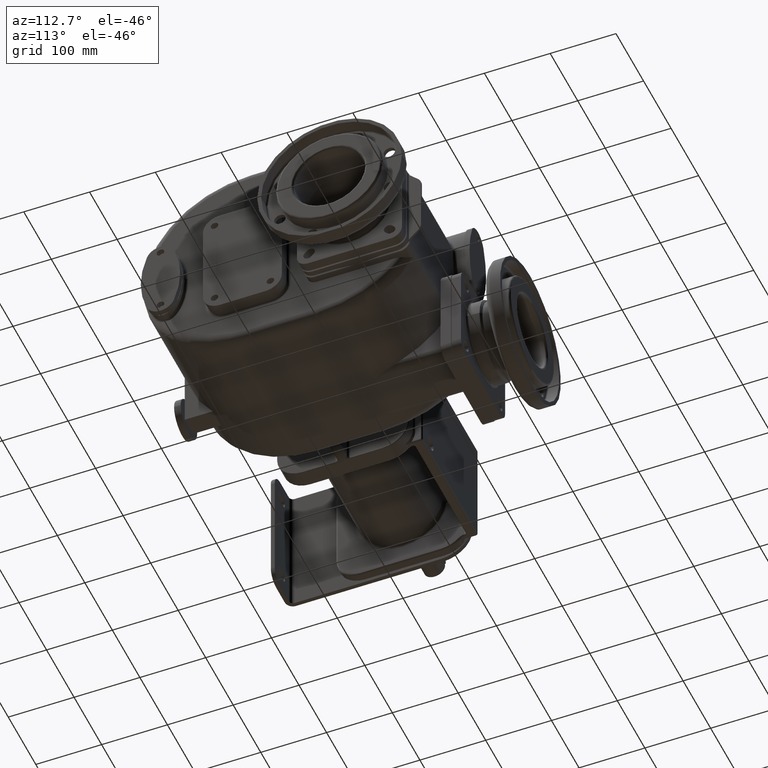
[diagram: clean part render]
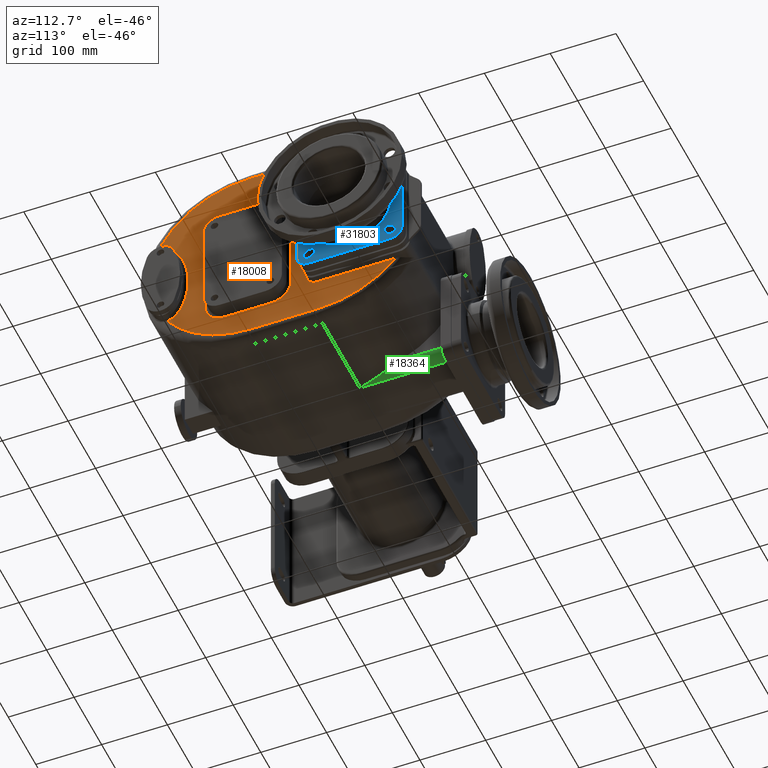
[diagram: same view with three faces highlighted in distinct colors, each labeled with its STEP entity id]
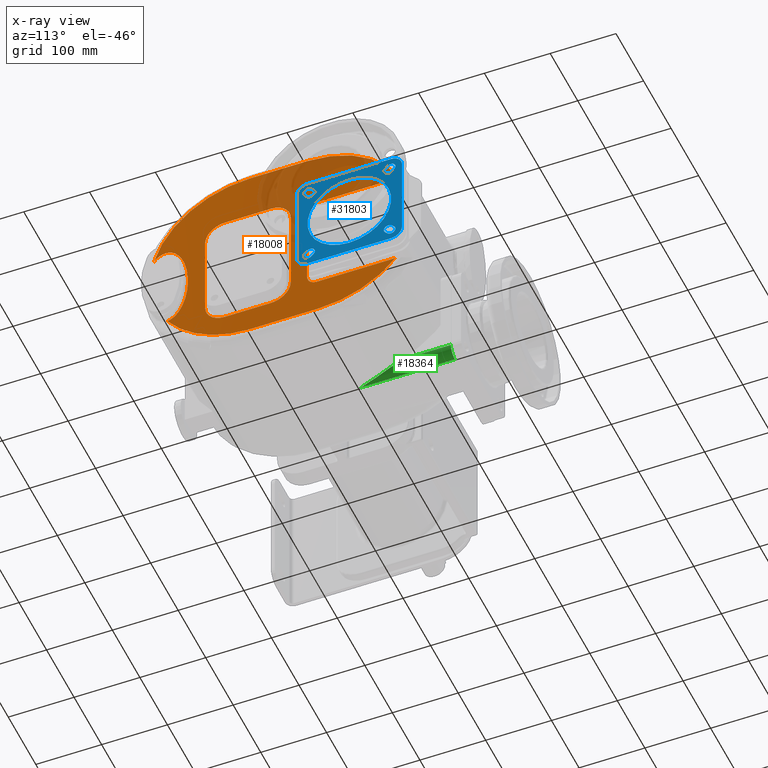
[diagram: x-ray of the same camera — body ghosted, the three highlighted faces saturated]
A machine part, auxiliary view with three faces highlighted in distinct colors.
The next image is the same camera in x-ray (body ghosted, the three faces saturated) — at least one of them is partly hidden behind the body in this view.
Their STEP definitions:

[orange] entity #18008 — the highlighted planar face has unit normal (-1, 0, 0).
#3175=DIRECTION('',(0.E0,1.E0,0.E0));
#3176=VECTOR('',#3175,1.190412641704E2);
#3177=CARTESIAN_POINT('',(1.8E2,2.7E2,-9.7E1));
#3178=LINE('',#3177,#3176);
#3329=DIRECTION('',(0.E0,0.E0,-1.E0));
#3330=VECTOR('',#3329,1.3E2);
#3331=CARTESIAN_POINT('',(1.8E2,2.55E2,4.8E1));
#3332=LINE('',#3331,#3330);
#3337=CARTESIAN_POINT('',(1.8E2,2.7E2,-8.2E1));
#3338=DIRECTION('',(-1.E0,0.E0,0.E0));
#3339=DIRECTION('',(0.E0,0.E0,-1.E0));
#3340=AXIS2_PLACEMENT_3D('',#3337,#3338,#3339);
#3342=CARTESIAN_POINT('',(1.8E2,4.E1,5.2E1));
#3343=CARTESIAN_POINT('',(1.800000331843E2,3.980818727470E1,5.199993962877E1));
#3344=CARTESIAN_POINT('',(1.799999845991E2,3.942480011682E1,5.199338808963E1));
#3345=CARTESIAN_POINT('',(1.800000041267E2,3.885060286425E1,5.196556070980E1));
#3346=CARTESIAN_POINT('',(1.799999988943E2,3.827678143422E1,5.191930522433E1));
#3347=CARTESIAN_POINT('',(1.800000002963E2,3.770302246160E1,5.185469433463E1));
#3348=CARTESIAN_POINT('',(1.799999999206E2,3.712898830050E1,5.177150025391E1));
#3349=CARTESIAN_POINT('',(1.800000000213E2,3.655439441187E1,5.166937378275E1));
#3350=CARTESIAN_POINT('',(1.799999999943E2,3.597899179671E1,5.154793146049E1));
#3351=CARTESIAN_POINT('',(1.800000000015E2,3.540211462222E1,5.140694735420E1));
#3352=CARTESIAN_POINT('',(1.799999999996E2,3.482310120080E1,5.124599283637E1));
#3353=CARTESIAN_POINT('',(1.800000000001E2,3.424129892006E1,5.106449656628E1));
#3354=CARTESIAN_POINT('',(1.8E2,3.365657686726E1,5.086189949844E1));
#3355=CARTESIAN_POINT('',(1.8E2,3.306934016899E1,5.063776117252E1));
#3356=CARTESIAN_POINT('',(1.8E2,3.248013854139E1,5.039163121960E1));
#3357=CARTESIAN_POINT('',(1.8E2,3.188885548453E1,5.012287420619E1));
#3358=CARTESIAN_POINT('',(1.8E2,3.129418848023E1,4.983033170392E1));
#3359=CARTESIAN_POINT('',(1.8E2,3.069517736382E1,4.951274395990E1));
#3360=CARTESIAN_POINT('',(1.8E2,3.009115941096E1,4.916881165846E1));
#3361=CARTESIAN_POINT('',(1.8E2,2.948285387504E1,4.879791862295E1));
#3362=CARTESIAN_POINT('',(1.8E2,2.887098042497E1,4.839948413577E1));
#3363=CARTESIAN_POINT('',(1.799999999999E2,2.825614514426E1,4.797287386555E1));
#3364=CARTESIAN_POINT('',(1.800000000004E2,2.763733871677E1,4.751622717343E1));
#3365=CARTESIAN_POINT('',(1.799999999985E2,2.701384605031E1,4.702767004294E1));
#3366=CARTESIAN_POINT('',(1.800000000057E2,2.638513806620E1,4.650529396619E1));
#3367=CARTESIAN_POINT('',(1.799999999788E2,2.575114861445E1,4.594744386966E1));
#3368=CARTESIAN_POINT('',(1.800000000791E2,2.511191621515E1,4.535246821145E1));
#3369=CARTESIAN_POINT('',(1.799999997050E2,2.446761445800E1,4.471885710891E1));
#3370=CARTESIAN_POINT('',(1.800000011011E2,2.381855094523E1,4.404481922097E1));
#3371=CARTESIAN_POINT('',(1.799999958908E2,2.316516593720E1,4.332840735070E1));
#3372=CARTESIAN_POINT('',(1.800000153359E2,2.250795785787E1,4.256798845231E1));
#3373=CARTESIAN_POINT('',(1.799999669558E2,2.206775618607E1,4.203031686421E1));
#3374=CARTESIAN_POINT('',(1.8E2,2.184726104059E1,4.175378615796E1));
#3376=CARTESIAN_POINT('',(1.8E2,1.68E2,0.E0));
#3377=DIRECTION('',(1.E0,0.E0,0.E0));
#3378=DIRECTION('',(0.E0,0.E0,1.E0));
#3379=AXIS2_PLACEMENT_3D('',#3376,#3377,#3378);
#3381=DIRECTION('',(0.E0,-1.E0,0.E0));
#3382=VECTOR('',#3381,8.777794898144E1);
#3383=CARTESIAN_POINT('',(1.8E2,2.557779489814E2,1.52E2));
#3384=LINE('',#3383,#3382);
#3385=CARTESIAN_POINT('',(1.8E2,2.557779489814E2,0.E0));
#3386=DIRECTION('',(1.E0,0.E0,0.E0));
#3387=DIRECTION('',(0.E0,9.100612974393E-1,4.144736842105E-1));
#3388=AXIS2_PLACEMENT_3D('',#3385,#3386,#3387);
#3390=CARTESIAN_POINT('',(1.8E2,2.720156259538E2,0.E0));
#3391=DIRECTION('',(1.E0,0.E0,0.E0));
#3392=DIRECTION('',(0.E0,0.E0,-1.E0));
#3393=AXIS2_PLACEMENT_3D('',#3390,#3391,#3392);
#3395=DIRECTION('',(0.E0,1.E0,0.E0));
#3396=VECTOR('',#3395,1.040156259538E2);
#3397=CARTESIAN_POINT('',(1.8E2,1.68E2,-1.52E2));
#3398=LINE('',#3397,#3396);
#3399=CARTESIAN_POINT('',(1.8E2,1.68E2,0.E0));
#3400=DIRECTION('',(1.E0,0.E0,0.E0));
#3401=DIRECTION('',(0.E0,-8.253686109153E-1,-5.645942402432E-1));
#3402=AXIS2_PLACEMENT_3D('',#3399,#3400,#3401);
#3404=CARTESIAN_POINT('',(1.8E2,4.254398519367E1,-8.581831490414E1));
#3405=CARTESIAN_POINT('',(1.799999576203E2,4.273448418722E1,-8.579113064837E1));
#3406=CARTESIAN_POINT('',(1.800000196685E2,4.311699007125E1,-8.572925093507E1));
#3407=CARTESIAN_POINT('',(1.799999947299E2,4.369615198677E1,-8.561888224030E1));
#3408=CARTESIAN_POINT('',(1.800000014121E2,4.427970648542E1,-8.548735146176E1));
#3409=CARTESIAN_POINT('',(1.799999996216E2,4.486738631977E1,-8.533483151979E1));
#3410=CARTESIAN_POINT('',(1.800000001014E2,4.545885354538E1,-8.516078490005E1));
#3411=CARTESIAN_POINT('',(1.799999999728E2,4.605372620474E1,-8.496488077846E1));
#3412=CARTESIAN_POINT('',(1.800000000073E2,4.665158160168E1,-8.474673163172E1));
#3413=CARTESIAN_POINT('',(1.799999999980E2,4.725185974461E1,-8.450600414516E1));
#3414=CARTESIAN_POINT('',(1.800000000005E2,4.785423712021E1,-8.424225516436E1));
#3415=CARTESIAN_POINT('',(1.799999999999E2,4.845923863383E1,-8.395456728404E1));
#3416=CARTESIAN_POINT('',(1.8E2,4.906710783786E1,-8.364194897871E1));
#3417=CARTESIAN_POINT('',(1.8E2,4.967823851880E1,-8.330341323749E1));
#3418=CARTESIAN_POINT('',(1.8E2,5.029334893937E1,-8.293767333756E1));
#3419=CARTESIAN_POINT('',(1.8E2,5.091309150415E1,-8.254330259045E1));
#3420=CARTESIAN_POINT('',(1.8E2,5.153797803444E1,-8.211879048320E1));
#3421=CARTESIAN_POINT('',(1.8E2,5.216804858170E1,-8.166279572738E1));
#3422=CARTESIAN_POINT('',(1.8E2,5.280296055975E1,-8.117419111672E1));
#3423=CARTESIAN_POINT('',(1.8E2,5.344240318969E1,-8.065167860861E1));
#3424=CARTESIAN_POINT('',(1.8E2,5.408652607022E1,-8.009349672348E1));
#3425=CARTESIAN_POINT('',(1.8E2,5.473530935171E1,-7.949794698872E1));
#3426=CARTESIAN_POINT('',(1.8E2,5.538888345341E1,-7.886313309123E1));
#3427=CARTESIAN_POINT('',(1.8E2,5.604755017724E1,-7.818685066555E1));
#3428=CARTESIAN_POINT('',(1.8E2,5.671132554390E1,-7.746666224846E1));
#3429=CARTESIAN_POINT('',(1.8E2,5.738004343081E1,-7.670023828095E1));
#3430=CARTESIAN_POINT('',(1.8E2,5.805355938730E1,-7.588524737336E1));
#3431=CARTESIAN_POINT('',(1.8E2,5.873159250727E1,-7.501911066679E1));
#3432=CARTESIAN_POINT('',(1.8E2,5.941359005206E1,-7.409922387014E1));
#3433=CARTESIAN_POINT('',(1.8E2,6.009909319418E1,-7.312303016413E1));
#3434=CARTESIAN_POINT('',(1.8E2,6.078759814060E1,-7.208764690390E1));
#3435=CARTESIAN_POINT('',(1.8E2,6.147824894362E1,-7.099013354473E1));
#3436=CARTESIAN_POINT('',(1.8E2,6.217025318667E1,-6.982776357650E1));
#3437=CARTESIAN_POINT('',(1.8E2,6.286255079838E1,-6.859761338820E1));
#3438=CARTESIAN_POINT('',(1.8E2,6.355387669675E1,-6.729682593738E1));
#3439=CARTESIAN_POINT('',(1.8E2,6.424290379719E1,-6.592285408985E1));
#3440=CARTESIAN_POINT('',(1.8E2,6.492793930763E1,-6.447298352913E1));
#3441=CARTESIAN_POINT('',(1.8E2,6.560727463214E1,-6.294503448074E1));
#3442=CARTESIAN_POINT('',(1.8E2,6.627883783383E1,-6.133678061513E1));
#3443=CARTESIAN_POINT('',(1.8E2,6.694051221516E1,-5.964658317709E1));
#3444=CARTESIAN_POINT('',(1.8E2,6.758984825433E1,-5.787294821885E1));
#3445=CARTESIAN_POINT('',(1.8E2,6.822437115398E1,-5.601502107566E1));
#3446=CARTESIAN_POINT('',(1.8E2,6.884133430897E1,-5.407212417479E1));
#3447=CARTESIAN_POINT('',(1.8E2,6.943794937927E1,-5.204444380553E1));
#3448=CARTESIAN_POINT('',(1.8E2,7.001123717127E1,-4.993241191694E1));
#3449=CARTESIAN_POINT('',(1.8E2,7.055812912224E1,-4.773761377466E1));
#3450=CARTESIAN_POINT('',(1.8E2,7.107550256937E1,-4.546208045615E1));
#3451=CARTESIAN_POINT('',(1.8E2,7.156017331873E1,-4.310889244837E1));
#3452=CARTESIAN_POINT('',(1.8E2,7.200906703540E1,-4.068185730257E1));
#3453=CARTESIAN_POINT('',(1.8E2,7.241910931263E1,-3.818550911297E1));
#3454=CARTESIAN_POINT('',(1.8E2,7.278746286882E1,-3.562544815721E1));
#3455=CARTESIAN_POINT('',(1.8E2,7.311137680005E1,-3.300769179452E1));
#3456=CARTESIAN_POINT('',(1.8E2,7.338847053111E1,-3.033940476639E1));
#3457=CARTESIAN_POINT('',(1.8E2,7.361651292697E1,-2.762790840168E1));
#3458=CARTESIAN_POINT('',(1.8E2,7.379378645438E1,-2.488161404186E1));
#3459=CARTESIAN_POINT('',(1.8E2,7.391873178365E1,-2.210904014249E1));
#3460=CARTESIAN_POINT('',(1.8E2,7.399044926425E1,-1.931934735244E1));
#3461=CARTESIAN_POINT('',(1.8E2,7.400821246141E1,-1.652191789015E1));
#3462=CARTESIAN_POINT('',(1.8E2,7.397198860098E1,-1.372614380797E1));
#3463=CARTESIAN_POINT('',(1.8E2,7.388200791742E1,-1.094151315767E1));
#3464=CARTESIAN_POINT('',(1.8E2,7.373905784398E1,-8.177305656894E0));
#3465=CARTESIAN_POINT('',(1.8E2,7.354432562118E1,-5.442295640126E0));
#3466=CARTESIAN_POINT('',(1.8E2,7.329934186452E1,-2.745244687352E0));
#3467=CARTESIAN_POINT('',(1.8E2,7.300610468834E1,-9.374905923024E-2));
#3468=CARTESIAN_POINT('',(1.8E2,7.266678991403E1,2.504551197165E0));
#3469=CARTESIAN_POINT('',(1.8E2,7.228399345032E1,5.043287509576E0));
#3470=CARTESIAN_POINT('',(1.8E2,7.186042542974E1,7.516239706656E0));
#3471=CARTESIAN_POINT('',(1.8E2,7.139905071802E1,9.918471680708E0));
#3472=CARTESIAN_POINT('',(1.8E2,7.090293042187E1,1.224541237753E1));
#3473=CARTESIAN_POINT('',(1.8E2,7.037518276257E1,1.449364794223E1));
#3474=CARTESIAN_POINT('',(1.8E2,6.981900223816E1,1.666037511705E1));
#3475=CARTESIAN_POINT('',(1.8E2,6.923747313531E1,1.874362040892E1));
#3476=CARTESIAN_POINT('',(1.8E2,6.863370028937E1,2.074231970080E1));
#3477=CARTESIAN_POINT('',(1.8E2,6.801053312788E1,2.265595108472E1));
#3478=CARTESIAN_POINT('',(1.8E2,6.737083040389E1,2.448485115161E1));
#3479=CARTESIAN_POINT('',(1.8E2,6.671713726574E1,2.622961258104E1));
#3480=CARTESIAN_POINT('',(1.8E2,6.605200962771E1,2.789153965201E1));
#3481=CARTESIAN_POINT('',(1.8E2,6.537765883438E1,2.947203370804E1));
#3482=CARTESIAN_POINT('',(1.8E2,6.469629336768E1,3.097311764243E1));
#3483=CARTESIAN_POINT('',(1.8E2,6.400972319486E1,3.239686677620E1));
#3484=CARTESIAN_POINT('',(1.8E2,6.331979487557E1,3.374574153604E1));
#3485=CARTESIAN_POINT('',(1.8E2,6.262798417715E1,3.502223350108E1));
#3486=CARTESIAN_POINT('',(1.8E2,6.193570484668E1,3.622902205492E1));
#3487=CARTESIAN_POINT('',(1.8E2,6.124417041571E1,3.736897600279E1));
#3488=CARTESIAN_POINT('',(1.8E2,6.055426456618E1,3.844484470499E1));
#3489=CARTESIAN_POINT('',(1.8E2,5.986692697393E1,3.945962802224E1));
#3490=CARTESIAN_POINT('',(1.8E2,5.918279132487E1,4.041617193559E1));
#3491=CARTESIAN_POINT('',(1.8E2,5.850222265604E1,4.131732763257E1));
#3492=CARTESIAN_POINT('',(1.8E2,5.782577590521E1,4.216583631149E1));
#3493=CARTESIAN_POINT('',(1.8E2,5.715382651690E1,4.296423204210E1));
#3494=CARTESIAN_POINT('',(1.8E2,5.648646724367E1,4.371503334128E1));
#3495=CARTESIAN_POINT('',(1.8E2,5.582395852801E1,4.442062128787E1));
#3496=CARTESIAN_POINT('',(1.8E2,5.516649480411E1,4.508317632765E1));
#3497=CARTESIAN_POINT('',(1.8E2,5.451402071744E1,4.570483566551E1));
#3498=CARTESIAN_POINT('',(1.8E2,5.386657747790E1,4.628762549572E1));
#3499=CARTESIAN_POINT('',(1.8E2,5.322418392843E1,4.683340020471E1));
#3500=CARTESIAN_POINT('',(1.8E2,5.258665287307E1,4.734396916503E1));
#3501=CARTESIAN_POINT('',(1.8E2,5.195389118481E1,4.782098865577E1));
#3502=CARTESIAN_POINT('',(1.8E2,5.132582205910E1,4.826597028932E1));
#3503=CARTESIAN_POINT('',(1.8E2,5.070220400795E1,4.868038938240E1));
#3504=CARTESIAN_POINT('',(1.8E2,5.008290132412E1,4.906553867028E1));
#3505=CARTESIAN_POINT('',(1.8E2,4.946779916625E1,4.942261879757E1));
#3506=CARTESIAN_POINT('',(1.8E2,4.885667068490E1,4.975278988079E1));
#3507=CARTESIAN_POINT('',(1.8E2,4.824923015791E1,5.005711219399E1));
#3508=CARTESIAN_POINT('',(1.8E2,4.764516114473E1,5.033660881168E1));
#3509=CARTESIAN_POINT('',(1.8E2,4.704409639167E1,5.059219609169E1));
#3510=CARTESIAN_POINT('',(1.8E2,4.644599054948E1,5.082452876819E1));
#3511=CARTESIAN_POINT('',(1.8E2,4.585080263081E1,5.103430381059E1));
#3512=CARTESIAN_POINT('',(1.8E2,4.525838813260E1,5.122216319776E1));
#3513=CARTESIAN_POINT('',(1.800000000001E2,4.466813237689E1,5.138874161680E1));
#3514=CARTESIAN_POINT('',(1.799999999997E2,4.407948632314E1,5.153465075716E1));
#3515=CARTESIAN_POINT('',(1.800000000010E2,4.349171051878E1,5.166042365702E1));
#3516=CARTESIAN_POINT('',(1.799999999961E2,4.290495319596E1,5.176622014298E1));
#3517=CARTESIAN_POINT('',(1.800000000145E2,4.231962804206E1,5.185219749989E1));
#3518=CARTESIAN_POINT('',(1.799999999460E2,4.173609435400E1,5.191864558629E1));
#3519=CARTESIAN_POINT('',(1.800000002016E2,4.115469489085E1,5.196579453957E1));
#3520=CARTESIAN_POINT('',(1.799999992475E2,4.057569381646E1,5.199379531186E1));
#3521=CARTESIAN_POINT('',(1.800000016214E2,4.019159750974E1,5.199999723067E1));
#3522=CARTESIAN_POINT('',(1.8E2,4.E1,5.2E1));
#3524=DIRECTION('',(0.E0,3.868850539123E-12,1.E0));
#3525=VECTOR('',#3524,1.299999999986E2);
#3526=CARTESIAN_POINT('',(1.8E2,2.299999999991E2,-8.199999999912E1));
#3527=LINE('',#3526,#3525);
#3528=CARTESIAN_POINT('',(1.8E2,2.E2,4.8E1));
#3529=DIRECTION('',(1.E0,0.E0,0.E0));
#3530=DIRECTION('',(0.E0,1.E0,0.E0));
#3531=AXIS2_PLACEMENT_3D('',#3528,#3529,#3530);
#3533=DIRECTION('',(0.E0,-1.E0,7.185820192995E-12));
#3534=VECTOR('',#3533,6.999999999856E1);
#3535=CARTESIAN_POINT('',(1.8E2,1.999999999991E2,7.799999999915E1));
#3536=LINE('',#3535,#3534);
#3537=CARTESIAN_POINT('',(1.8E2,1.3E2,4.8E1));
#3538=DIRECTION('',(1.E0,0.E0,0.E0));
#3539=DIRECTION('',(0.E0,0.E0,1.E0));
#3540=AXIS2_PLACEMENT_3D('',#3537,#3538,#3539);
#3542=DIRECTION('',(0.E0,-3.868959853390E-12,-1.E0));
#3543=VECTOR('',#3542,1.299999999986E2);
#3544=CARTESIAN_POINT('',(1.8E2,1.000000000009E2,4.799999999912E1));
#3545=LINE('',#3544,#3543);
#3546=CARTESIAN_POINT('',(1.8E2,1.3E2,-8.2E1));
#3547=DIRECTION('',(1.E0,0.E0,0.E0));
#3548=DIRECTION('',(0.E0,-1.E0,0.E0));
#3549=AXIS2_PLACEMENT_3D('',#3546,#3547,#3548);
#3551=DIRECTION('',(0.E0,1.E0,-7.185617180785E-12));
#3552=VECTOR('',#3551,6.999999999856E1);
#3553=CARTESIAN_POINT('',(1.8E2,1.300000000009E2,-1.119999999991E2));
#3554=LINE('',#3553,#3552);
#3555=CARTESIAN_POINT('',(1.8E2,2.E2,-8.2E1));
#3556=DIRECTION('',(1.E0,0.E0,0.E0));
#3557=DIRECTION('',(0.E0,0.E0,-1.E0));
#3558=AXIS2_PLACEMENT_3D('',#3555,#3556,#3557);
#5454=DIRECTION('',(0.E0,-1.E0,0.E0));
#5455=VECTOR('',#5454,1.241072661922E2);
#5456=CARTESIAN_POINT('',(1.8E2,3.941072661922E2,6.3E1));
#5457=LINE('',#5456,#5455);
#5462=CARTESIAN_POINT('',(1.8E2,2.7E2,4.8E1));
#5463=DIRECTION('',(-1.E0,0.E0,0.E0));
#5464=DIRECTION('',(0.E0,-1.E0,0.E0));
#5465=AXIS2_PLACEMENT_3D('',#5462,#5463,#5464);
#12247=CARTESIAN_POINT('',(1.8E2,2.55E2,4.8E1));
#12248=CARTESIAN_POINT('',(1.8E2,2.55E2,-8.2E1));
#12249=VERTEX_POINT('',#12247);
#12250=VERTEX_POINT('',#12248);
#12251=CARTESIAN_POINT('',(1.8E2,2.7E2,-9.7E1));
#12252=VERTEX_POINT('',#12251);
#12253=CARTESIAN_POINT('',(1.8E2,2.7E2,6.3E1));
#12254=VERTEX_POINT('',#12253);
#12267=CARTESIAN_POINT('',(1.8E2,2.720156259538E2,-1.52E2));
#12268=CARTESIAN_POINT('',(1.8E2,3.890412641704E2,-9.7E1));
#12269=VERTEX_POINT('',#12267);
#12270=VERTEX_POINT('',#12268);
#12271=CARTESIAN_POINT('',(1.8E2,1.68E2,-1.52E2));
#12272=VERTEX_POINT('',#12271);
#12277=CARTESIAN_POINT('',(1.8E2,2.557779489814E2,1.52E2));
#12278=CARTESIAN_POINT('',(1.8E2,1.68E2,1.52E2));
#12279=VERTEX_POINT('',#12277);
#12280=VERTEX_POINT('',#12278);
#12283=CARTESIAN_POINT('',(1.8E2,3.941072661922E2,6.3E1));
#12284=VERTEX_POINT('',#12283);
#12341=VERTEX_POINT('',#3342);
#12342=VERTEX_POINT('',#3374);
#12344=VERTEX_POINT('',#3404);
#12354=CARTESIAN_POINT('',(1.8E2,2.299999999991E2,-8.199999999912E1));
#12355=CARTESIAN_POINT('',(1.8E2,2.299999999996E2,4.799999999944E1));
#12356=VERTEX_POINT('',#12354);
#12357=VERTEX_POINT('',#12355);
#12358=CARTESIAN_POINT('',(1.8E2,2.E2,7.8E1));
#12359=VERTEX_POINT('',#12358);
#12362=CARTESIAN_POINT('',(1.8E2,1.300000000006E2,7.799999999965E1));
#12363=VERTEX_POINT('',#12362);
#12366=CARTESIAN_POINT('',(1.8E2,1.E2,4.8E1));
#12367=VERTEX_POINT('',#12366);
#12370=CARTESIAN_POINT('',(1.8E2,1.000000000004E2,-8.199999999944E1));
#12371=VERTEX_POINT('',#12370);
#12374=CARTESIAN_POINT('',(1.8E2,2.E2,-1.12E2));
#12375=VERTEX_POINT('',#12374);
#12378=CARTESIAN_POINT('',(1.8E2,1.300000000009E2,-1.119999999991E2));
#12379=VERTEX_POINT('',#12378);
#17960=CARTESIAN_POINT('',(1.8E2,1.7E2,0.E0));
#17961=DIRECTION('',(-1.E0,0.E0,0.E0));
#17962=DIRECTION('',(0.E0,0.E0,1.E0));
#17963=AXIS2_PLACEMENT_3D('',#17960,#17961,#17962);
#17964=PLANE('',#17963);
#17966=ORIENTED_EDGE('',*,*,#17965,.T.);
#17968=ORIENTED_EDGE('',*,*,#17967,.F.);
#17970=ORIENTED_EDGE('',*,*,#17969,.F.);
#17972=ORIENTED_EDGE('',*,*,#17971,.F.);
#17974=ORIENTED_EDGE('',*,*,#17973,.T.);
#17976=ORIENTED_EDGE('',*,*,#17975,.F.);
#17977=ORIENTED_EDGE('',*,*,#17940,.T.);
#17978=ORIENTED_EDGE('',*,*,#17952,.F.);
#17979=ORIENTED_EDGE('',*,*,#17757,.T.);
#17981=ORIENTED_EDGE('',*,*,#17980,.F.);
#17983=ORIENTED_EDGE('',*,*,#17982,.F.);
#17985=ORIENTED_EDGE('',*,*,#17984,.F.);
#17987=ORIENTED_EDGE('',*,*,#17986,.T.);
#17988=EDGE_LOOP('',(#17966,#17968,#17970,#17972,#17974,#17976,#17977,#17978,
#17979,#17981,#17983,#17985,#17987));
#17989=FACE_OUTER_BOUND('',#17988,.F.);
#17991=ORIENTED_EDGE('',*,*,#17990,.T.);
#17993=ORIENTED_EDGE('',*,*,#17992,.T.);
#17995=ORIENTED_EDGE('',*,*,#17994,.T.);
#17997=ORIENTED_EDGE('',*,*,#17996,.T.);
#17999=ORIENTED_EDGE('',*,*,#17998,.T.);
#18001=ORIENTED_EDGE('',*,*,#18000,.T.);
#18003=ORIENTED_EDGE('',*,*,#18002,.T.);
#18005=ORIENTED_EDGE('',*,*,#18004,.T.);
#18006=EDGE_LOOP('',(#17991,#17993,#17995,#17997,#17999,#18001,#18003,#18005));
#18007=FACE_BOUND('',#18006,.F.);
#18008=ADVANCED_FACE('',(#17989,#18007),#17964,.F.);
#3341=CIRCLE('',#3340,1.5E1);
#3375=B_SPLINE_CURVE_WITH_KNOTS('',3,(#3342,#3343,#3344,#3345,#3346,#3347,#3348,
#3349,#3350,#3351,#3352,#3353,#3354,#3355,#3356,#3357,#3358,#3359,#3360,#3361,
#3362,#3363,#3364,#3365,#3366,#3367,#3368,#3369,#3370,#3371,#3372,#3373,#3374),
.UNSPECIFIED.,.F.,.F.,(4,1,1,1,1,1,1,1,1,1,1,1,1,1,1,1,1,1,1,1,1,1,1,1,1,1,1,1,
1,1,4),(0.E0,3.333333333333E-2,6.666666666667E-2,1.E-1,1.333333333333E-1,
1.666666666667E-1,2.E-1,2.333333333333E-1,2.666666666667E-1,3.E-1,
3.333333333333E-1,3.666666666667E-1,4.E-1,4.333333333333E-1,4.666666666667E-1,
5.E-1,5.333333333333E-1,5.666666666667E-1,6.E-1,6.333333333333E-1,
6.666666666667E-1,7.E-1,7.333333333333E-1,7.666666666667E-1,8.E-1,
8.333333333333E-1,8.666666666667E-1,9.E-1,9.333333333333E-1,9.666666666667E-1,
1.E0),.UNSPECIFIED.);
#3380=CIRCLE('',#3379,1.52E2);
#3389=CIRCLE('',#3388,1.52E2);
#3394=CIRCLE('',#3393,1.52E2);
#3403=CIRCLE('',#3402,1.52E2);
#3523=B_SPLINE_CURVE_WITH_KNOTS('',3,(#3404,#3405,#3406,#3407,#3408,#3409,#3410,
#3411,#3412,#3413,#3414,#3415,#3416,#3417,#3418,#3419,#3420,#3421,#3422,#3423,
#3424,#3425,#3426,#3427,#3428,#3429,#3430,#3431,#3432,#3433,#3434,#3435,#3436,
#3437,#3438,#3439,#3440,#3441,#3442,#3443,#3444,#3445,#3446,#3447,#3448,#3449,
#3450,#3451,#3452,#3453,#3454,#3455,#3456,#3457,#3458,#3459,#3460,#3461,#3462,
#3463,#3464,#3465,#3466,#3467,#3468,#3469,#3470,#3471,#3472,#3473,#3474,#3475,
#3476,#3477,#3478,#3479,#3480,#3481,#3482,#3483,#3484,#3485,#3486,#3487,#3488,
#3489,#3490,#3491,#3492,#3493,#3494,#3495,#3496,#3497,#3498,#3499,#3500,#3501,
#3502,#3503,#3504,#3505,#3506,#3507,#3508,#3509,#3510,#3511,#3512,#3513,#3514,
#3515,#3516,#3517,#3518,#3519,#3520,#3521,#3522),.UNSPECIFIED.,.F.,.F.,(4,1,1,1,
1,1,1,1,1,1,1,1,1,1,1,1,1,1,1,1,1,1,1,1,1,1,1,1,1,1,1,1,1,1,1,1,1,1,1,1,1,1,1,1,
1,1,1,1,1,1,1,1,1,1,1,1,1,1,1,1,1,1,1,1,1,1,1,1,1,1,1,1,1,1,1,1,1,1,1,1,1,1,1,1,
1,1,1,1,1,1,1,1,1,1,1,1,1,1,1,1,1,1,1,1,1,1,1,1,1,1,1,1,1,1,1,1,4),(0.E0,
8.620689655172E-3,1.724137931034E-2,2.586206896552E-2,3.448275862069E-2,
4.310344827586E-2,5.172413793103E-2,6.034482758621E-2,6.896551724138E-2,
7.758620689655E-2,8.620689655172E-2,9.482758620690E-2,1.034482758621E-1,
1.120689655172E-1,1.206896551724E-1,1.293103448276E-1,1.379310344828E-1,
1.465517241379E-1,1.551724137931E-1,1.637931034483E-1,1.724137931034E-1,
1.810344827586E-1,1.896551724138E-1,1.982758620690E-1,2.068965517241E-1,
2.155172413793E-1,2.241379310345E-1,2.327586206897E-1,2.413793103448E-1,2.5E-1,
2.586206896552E-1,2.672413793103E-1,2.758620689655E-1,2.844827586207E-1,
2.931034482759E-1,3.017241379310E-1,3.103448275862E-1,3.189655172414E-1,
3.275862068966E-1,3.362068965517E-1,3.448275862069E-1,3.534482758621E-1,
3.620689655172E-1,3.706896551724E-1,3.793103448276E-1,3.879310344828E-1,
3.965517241379E-1,4.051724137931E-1,4.137931034483E-1,4.224137931034E-1,
4.310344827586E-1,4.396551724138E-1,4.482758620690E-1,4.568965517241E-1,
4.655172413793E-1,4.741379310345E-1,4.827586206897E-1,4.913793103448E-1,5.E-1,
5.086206896552E-1,5.172413793103E-1,5.258620689655E-1,5.344827586207E-1,
5.431034482759E-1,5.517241379310E-1,5.603448275862E-1,5.689655172414E-1,
5.775862068966E-1,5.862068965517E-1,5.948275862069E-1,6.034482758621E-1,
6.120689655172E-1,6.206896551724E-1,6.293103448276E-1,6.379310344828E-1,
6.465517241379E-1,6.551724137931E-1,6.637931034483E-1,6.724137931034E-1,
6.810344827586E-1,6.896551724138E-1,6.982758620690E-1,7.068965517241E-1,
7.155172413793E-1,7.241379310345E-1,7.327586206897E-1,7.413793103448E-1,7.5E-1,
7.586206896552E-1,7.672413793103E-1,7.758620689655E-1,7.844827586207E-1,
7.931034482759E-1,8.017241379310E-1,8.103448275862E-1,8.189655172414E-1,
8.275862068966E-1,8.362068965517E-1,8.448275862069E-1,8.534482758621E-1,
8.620689655172E-1,8.706896551724E-1,8.793103448276E-1,8.879310344828E-1,
8.965517241379E-1,9.051724137931E-1,9.137931034483E-1,9.224137931034E-1,
9.310344827586E-1,9.396551724138E-1,9.482758620690E-1,9.568965517241E-1,
9.655172413793E-1,9.741379310345E-1,9.827586206897E-1,9.913793103448E-1,1.E0),
.UNSPECIFIED.);
#3532=CIRCLE('',#3531,3.E1);
#3541=CIRCLE('',#3540,3.E1);
#3550=CIRCLE('',#3549,3.E1);
#3559=CIRCLE('',#3558,3.E1);
#5466=CIRCLE('',#5465,1.5E1);
#17757=EDGE_CURVE('',#12252,#12270,#3178,.T.);
#17940=EDGE_CURVE('',#12249,#12250,#3332,.T.);
#17952=EDGE_CURVE('',#12252,#12250,#3341,.T.);
#17965=EDGE_CURVE('',#12341,#12342,#3375,.T.);
#17967=EDGE_CURVE('',#12280,#12342,#3380,.T.);
#17969=EDGE_CURVE('',#12279,#12280,#3384,.T.);
#17971=EDGE_CURVE('',#12284,#12279,#3389,.T.);
#17973=EDGE_CURVE('',#12284,#12254,#5457,.T.);
#17975=EDGE_CURVE('',#12249,#12254,#5466,.T.);
#17980=EDGE_CURVE('',#12269,#12270,#3394,.T.);
#17982=EDGE_CURVE('',#12272,#12269,#3398,.T.);
#17984=EDGE_CURVE('',#12344,#12272,#3403,.T.);
#17986=EDGE_CURVE('',#12344,#12341,#3523,.T.);
#17990=EDGE_CURVE('',#12356,#12357,#3527,.T.);
#17992=EDGE_CURVE('',#12357,#12359,#3532,.T.);
#17994=EDGE_CURVE('',#12359,#12363,#3536,.T.);
#17996=EDGE_CURVE('',#12363,#12367,#3541,.T.);
#17998=EDGE_CURVE('',#12367,#12371,#3545,.T.);
#18000=EDGE_CURVE('',#12371,#12379,#3550,.T.);
#18002=EDGE_CURVE('',#12379,#12375,#3554,.T.);
#18004=EDGE_CURVE('',#12375,#12356,#3559,.T.);

[blue] entity #31803 — the highlighted planar face has unit normal (1, 0, 0).
#30345=CARTESIAN_POINT('',(2.18E2,3.35E2,-1.7E1));
#30346=DIRECTION('',(1.E0,0.E0,0.E0));
#30347=DIRECTION('',(0.E0,0.E0,-1.E0));
#30348=AXIS2_PLACEMENT_3D('',#30345,#30346,#30347);
#30350=CARTESIAN_POINT('',(2.18E2,3.35E2,-1.7E1));
#30351=DIRECTION('',(-1.E0,0.E0,0.E0));
#30352=DIRECTION('',(0.E0,0.E0,-1.E0));
#30353=AXIS2_PLACEMENT_3D('',#30350,#30351,#30352);
#30355=DIRECTION('',(0.E0,7.071067811866E-1,7.071067811865E-1));
#30356=VECTOR('',#30355,5.E0);
#30357=CARTESIAN_POINT('',(2.18E2,3.993467170880E2,3.744722215136E1));
#30358=LINE('',#30357,#30356);
#30359=CARTESIAN_POINT('',(2.18E2,3.979325035256E2,4.593250352560E1));
#30360=DIRECTION('',(1.E0,0.E0,0.E0));
#30361=DIRECTION('',(0.E0,7.071067811866E-1,-7.071067811865E-1));
#30362=AXIS2_PLACEMENT_3D('',#30359,#30360,#30361);
#30364=DIRECTION('',(0.E0,-7.071067811865E-1,-7.071067811865E-1));
#30365=VECTOR('',#30364,5.E0);
#30366=CARTESIAN_POINT('',(2.18E2,3.929827560573E2,5.088225099391E1));
#30367=LINE('',#30366,#30365);
#30368=CARTESIAN_POINT('',(2.18E2,3.943969696197E2,4.239696961967E1));
#30369=DIRECTION('',(1.E0,0.E0,0.E0));
#30370=DIRECTION('',(0.E0,-7.071067811866E-1,7.071067811865E-1));
#30371=AXIS2_PLACEMENT_3D('',#30368,#30369,#30370);
#30373=DIRECTION('',(0.E0,-7.071067811865E-1,7.071067811865E-1));
#30374=VECTOR('',#30373,5.E0);
#30375=CARTESIAN_POINT('',(2.18E2,2.805527778486E2,4.734671708798E1));
#30376=LINE('',#30375,#30374);
#30377=CARTESIAN_POINT('',(2.18E2,2.720674964744E2,4.593250352560E1));
#30378=DIRECTION('',(1.E0,0.E0,0.E0));
#30379=DIRECTION('',(0.E0,7.071067811865E-1,7.071067811866E-1));
#30380=AXIS2_PLACEMENT_3D('',#30377,#30378,#30379);
#30382=DIRECTION('',(0.E0,7.071067811865E-1,-7.071067811865E-1));
#30383=VECTOR('',#30382,5.E0);
#30384=CARTESIAN_POINT('',(2.18E2,2.671177490061E2,4.098275605730E1));
#30385=LINE('',#30384,#30383);
#30386=CARTESIAN_POINT('',(2.18E2,2.756030303803E2,4.239696961967E1));
#30387=DIRECTION('',(1.E0,0.E0,0.E0));
#30388=DIRECTION('',(0.E0,-7.071067811866E-1,-7.071067811865E-1));
#30389=AXIS2_PLACEMENT_3D('',#30386,#30387,#30388);
#30391=DIRECTION('',(0.E0,-7.071067811866E-1,-7.071067811865E-1));
#30392=VECTOR('',#30391,5.E0);
#30393=CARTESIAN_POINT('',(2.18E2,2.706532829120E2,-7.144722215136E1));
#30394=LINE('',#30393,#30392);
#30395=CARTESIAN_POINT('',(2.18E2,2.720674964744E2,-7.993250352560E1));
#30396=DIRECTION('',(1.E0,0.E0,0.E0));
#30397=DIRECTION('',(0.E0,-7.071067811866E-1,7.071067811865E-1));
#30398=AXIS2_PLACEMENT_3D('',#30395,#30396,#30397);
#30400=DIRECTION('',(0.E0,7.071067811865E-1,7.071067811865E-1));
#30401=VECTOR('',#30400,5.E0);
#30402=CARTESIAN_POINT('',(2.18E2,2.770172439427E2,-8.488225099391E1));
#30403=LINE('',#30402,#30401);
#30404=CARTESIAN_POINT('',(2.18E2,2.756030303803E2,-7.639696961967E1));
#30405=DIRECTION('',(1.E0,0.E0,0.E0));
#30406=DIRECTION('',(0.E0,7.071067811865E-1,-7.071067811866E-1));
#30407=AXIS2_PLACEMENT_3D('',#30404,#30405,#30406);
#30409=DIRECTION('',(0.E0,7.071067811865E-1,-7.071067811865E-1));
#30410=VECTOR('',#30409,5.E0);
#30411=CARTESIAN_POINT('',(2.18E2,3.894472221514E2,-8.134671708798E1));
#30412=LINE('',#30411,#30410);
#30413=CARTESIAN_POINT('',(2.18E2,3.979325035256E2,-7.993250352560E1));
#30414=DIRECTION('',(1.E0,0.E0,0.E0));
#30415=DIRECTION('',(0.E0,-7.071067811865E-1,-7.071067811866E-1));
#30416=AXIS2_PLACEMENT_3D('',#30413,#30414,#30415);
#30418=DIRECTION('',(0.E0,-7.071067811866E-1,7.071067811865E-1));
#30419=VECTOR('',#30418,5.E0);
#30420=CARTESIAN_POINT('',(2.18E2,4.028822509939E2,-7.498275605730E1));
#30421=LINE('',#30420,#30419);
#30422=CARTESIAN_POINT('',(2.18E2,3.943969696197E2,-7.639696961967E1));
#30423=DIRECTION('',(1.E0,0.E0,0.E0));
#30424=DIRECTION('',(0.E0,7.071067811866E-1,7.071067811865E-1));
#30425=AXIS2_PLACEMENT_3D('',#30422,#30423,#30424);
#30435=DIRECTION('',(0.E0,0.E0,1.E0));
#30436=VECTOR('',#30435,1.26E2);
#30437=CARTESIAN_POINT('',(2.18E2,4.15E2,-8.E1));
#30438=LINE('',#30437,#30436);
#30448=CARTESIAN_POINT('',(2.18E2,3.98E2,4.6E1));
#30449=DIRECTION('',(-1.E0,0.E0,0.E0));
#30450=DIRECTION('',(0.E0,0.E0,1.E0));
#30451=AXIS2_PLACEMENT_3D('',#30448,#30449,#30450);
#30461=DIRECTION('',(0.E0,-1.E0,0.E0));
#30462=VECTOR('',#30461,1.26E2);
#30463=CARTESIAN_POINT('',(2.18E2,3.98E2,6.3E1));
#30464=LINE('',#30463,#30462);
#30474=CARTESIAN_POINT('',(2.18E2,2.72E2,4.6E1));
#30475=DIRECTION('',(-1.E0,0.E0,0.E0));
#30476=DIRECTION('',(0.E0,-1.E0,0.E0));
#30477=AXIS2_PLACEMENT_3D('',#30474,#30475,#30476);
#30487=DIRECTION('',(0.E0,0.E0,-1.E0));
#30488=VECTOR('',#30487,1.26E2);
#30489=CARTESIAN_POINT('',(2.18E2,2.55E2,4.6E1));
#30490=LINE('',#30489,#30488);
#30500=CARTESIAN_POINT('',(2.18E2,2.72E2,-8.E1));
#30501=DIRECTION('',(-1.E0,0.E0,0.E0));
#30502=DIRECTION('',(0.E0,0.E0,-1.E0));
#30503=AXIS2_PLACEMENT_3D('',#30500,#30501,#30502);
#30513=DIRECTION('',(0.E0,1.E0,0.E0));
#30514=VECTOR('',#30513,1.26E2);
#30515=CARTESIAN_POINT('',(2.18E2,2.72E2,-9.7E1));
#30516=LINE('',#30515,#30514);
#30526=CARTESIAN_POINT('',(2.18E2,3.98E2,-8.E1));
#30527=DIRECTION('',(-1.E0,0.E0,0.E0));
#30528=DIRECTION('',(0.E0,1.E0,4.012476625469E-14));
#30529=AXIS2_PLACEMENT_3D('',#30526,#30527,#30528);
#31223=CARTESIAN_POINT('',(2.18E2,3.35E2,-8.05E1));
#31225=VERTEX_POINT('',#31223);
#31231=CARTESIAN_POINT('',(2.18E2,3.35E2,4.65E1));
#31233=VERTEX_POINT('',#31231);
#31234=CARTESIAN_POINT('',(2.18E2,4.15E2,-8.E1));
#31235=CARTESIAN_POINT('',(2.18E2,4.15E2,4.6E1));
#31236=VERTEX_POINT('',#31234);
#31237=VERTEX_POINT('',#31235);
#31238=CARTESIAN_POINT('',(2.18E2,3.98E2,6.3E1));
#31239=CARTESIAN_POINT('',(2.18E2,2.72E2,6.3E1));
#31240=VERTEX_POINT('',#31238);
#31241=VERTEX_POINT('',#31239);
#31242=CARTESIAN_POINT('',(2.18E2,2.55E2,4.6E1));
#31243=CARTESIAN_POINT('',(2.18E2,2.55E2,-8.E1));
#31244=VERTEX_POINT('',#31242);
#31245=VERTEX_POINT('',#31243);
#31246=CARTESIAN_POINT('',(2.18E2,2.72E2,-9.7E1));
#31247=CARTESIAN_POINT('',(2.18E2,3.98E2,-9.7E1));
#31248=VERTEX_POINT('',#31246);
#31249=VERTEX_POINT('',#31247);
#31258=CARTESIAN_POINT('',(2.18E2,3.993467170880E2,3.744722215136E1));
#31259=CARTESIAN_POINT('',(2.18E2,4.028822509939E2,4.098275605730E1));
#31260=VERTEX_POINT('',#31258);
#31261=VERTEX_POINT('',#31259);
#31262=CARTESIAN_POINT('',(2.18E2,3.929827560573E2,5.088225099391E1));
#31263=VERTEX_POINT('',#31262);
#31264=CARTESIAN_POINT('',(2.18E2,3.894472221514E2,4.734671708798E1));
#31265=VERTEX_POINT('',#31264);
#31266=CARTESIAN_POINT('',(2.18E2,2.805527778486E2,4.734671708798E1));
#31267=CARTESIAN_POINT('',(2.18E2,2.770172439427E2,5.088225099391E1));
#31268=VERTEX_POINT('',#31266);
#31269=VERTEX_POINT('',#31267);
#31270=CARTESIAN_POINT('',(2.18E2,2.671177490061E2,4.098275605730E1));
#31271=VERTEX_POINT('',#31270);
#31272=CARTESIAN_POINT('',(2.18E2,2.706532829120E2,3.744722215136E1));
#31273=VERTEX_POINT('',#31272);
#31274=CARTESIAN_POINT('',(2.18E2,2.706532829120E2,-7.144722215136E1));
#31275=CARTESIAN_POINT('',(2.18E2,2.671177490061E2,-7.498275605730E1));
#31276=VERTEX_POINT('',#31274);
#31277=VERTEX_POINT('',#31275);
#31278=CARTESIAN_POINT('',(2.18E2,2.770172439427E2,-8.488225099391E1));
#31279=VERTEX_POINT('',#31278);
#31280=CARTESIAN_POINT('',(2.18E2,2.805527778486E2,-8.134671708798E1));
#31281=VERTEX_POINT('',#31280);
#31282=CARTESIAN_POINT('',(2.18E2,3.894472221514E2,-8.134671708798E1));
#31283=CARTESIAN_POINT('',(2.18E2,3.929827560573E2,-8.488225099391E1));
#31284=VERTEX_POINT('',#31282);
#31285=VERTEX_POINT('',#31283);
#31286=CARTESIAN_POINT('',(2.18E2,4.028822509939E2,-7.498275605730E1));
#31287=VERTEX_POINT('',#31286);
#31288=CARTESIAN_POINT('',(2.18E2,3.993467170880E2,-7.144722215136E1));
#31289=VERTEX_POINT('',#31288);
#31736=CARTESIAN_POINT('',(2.18E2,3.35E2,-1.7E1));
#31737=DIRECTION('',(1.E0,0.E0,0.E0));
#31738=DIRECTION('',(0.E0,0.E0,-1.E0));
#31739=AXIS2_PLACEMENT_3D('',#31736,#31737,#31738);
#31740=PLANE('',#31739);
#31742=ORIENTED_EDGE('',*,*,#31741,.F.);
#31744=ORIENTED_EDGE('',*,*,#31743,.T.);
#31746=ORIENTED_EDGE('',*,*,#31745,.F.);
#31748=ORIENTED_EDGE('',*,*,#31747,.T.);
#31750=ORIENTED_EDGE('',*,*,#31749,.F.);
#31752=ORIENTED_EDGE('',*,*,#31751,.T.);
#31754=ORIENTED_EDGE('',*,*,#31753,.F.);
#31756=ORIENTED_EDGE('',*,*,#31755,.T.);
#31757=EDGE_LOOP('',(#31742,#31744,#31746,#31748,#31750,#31752,#31754,#31756));
#31758=FACE_OUTER_BOUND('',#31757,.F.);
#31759=ORIENTED_EDGE('',*,*,#31731,.T.);
#31760=ORIENTED_EDGE('',*,*,#31715,.F.);
#31761=EDGE_LOOP('',(#31759,#31760));
#31762=FACE_BOUND('',#31761,.F.);
#31764=ORIENTED_EDGE('',*,*,#31763,.T.);
#31766=ORIENTED_EDGE('',*,*,#31765,.T.);
#31768=ORIENTED_EDGE('',*,*,#31767,.T.);
#31770=ORIENTED_EDGE('',*,*,#31769,.T.);
#31771=EDGE_LOOP('',(#31764,#31766,#31768,#31770));
#31772=FACE_BOUND('',#31771,.F.);
#31774=ORIENTED_EDGE('',*,*,#31773,.T.);
#31776=ORIENTED_EDGE('',*,*,#31775,.T.);
#31778=ORIENTED_EDGE('',*,*,#31777,.T.);
#31780=ORIENTED_EDGE('',*,*,#31779,.T.);
#31781=EDGE_LOOP('',(#31774,#31776,#31778,#31780));
#31782=FACE_BOUND('',#31781,.F.);
#31784=ORIENTED_EDGE('',*,*,#31783,.T.);
#31786=ORIENTED_EDGE('',*,*,#31785,.T.);
#31788=ORIENTED_EDGE('',*,*,#31787,.T.);
#31790=ORIENTED_EDGE('',*,*,#31789,.T.);
#31791=EDGE_LOOP('',(#31784,#31786,#31788,#31790));
#31792=FACE_BOUND('',#31791,.F.);
#31794=ORIENTED_EDGE('',*,*,#31793,.T.);
#31796=ORIENTED_EDGE('',*,*,#31795,.T.);
#31798=ORIENTED_EDGE('',*,*,#31797,.T.);
#31800=ORIENTED_EDGE('',*,*,#31799,.T.);
#31801=EDGE_LOOP('',(#31794,#31796,#31798,#31800));
#31802=FACE_BOUND('',#31801,.F.);
#31803=ADVANCED_FACE('',(#31758,#31762,#31772,#31782,#31792,#31802),#31740,.T.);
#30349=CIRCLE('',#30348,6.35E1);
#30354=CIRCLE('',#30353,6.35E1);
#30363=CIRCLE('',#30362,7.E0);
#30372=CIRCLE('',#30371,7.E0);
#30381=CIRCLE('',#30380,7.E0);
#30390=CIRCLE('',#30389,7.E0);
#30399=CIRCLE('',#30398,7.E0);
#30408=CIRCLE('',#30407,7.E0);
#30417=CIRCLE('',#30416,7.E0);
#30426=CIRCLE('',#30425,7.E0);
#30452=CIRCLE('',#30451,1.7E1);
#30478=CIRCLE('',#30477,1.7E1);
#30504=CIRCLE('',#30503,1.7E1);
#30530=CIRCLE('',#30529,1.7E1);
#31715=EDGE_CURVE('',#31225,#31233,#30354,.T.);
#31731=EDGE_CURVE('',#31225,#31233,#30349,.T.);
#31741=EDGE_CURVE('',#31236,#31237,#30438,.T.);
#31743=EDGE_CURVE('',#31236,#31249,#30530,.T.);
#31745=EDGE_CURVE('',#31248,#31249,#30516,.T.);
#31747=EDGE_CURVE('',#31248,#31245,#30504,.T.);
#31749=EDGE_CURVE('',#31244,#31245,#30490,.T.);
#31751=EDGE_CURVE('',#31244,#31241,#30478,.T.);
#31753=EDGE_CURVE('',#31240,#31241,#30464,.T.);
#31755=EDGE_CURVE('',#31240,#31237,#30452,.T.);
#31763=EDGE_CURVE('',#31260,#31261,#30358,.T.);
#31765=EDGE_CURVE('',#31261,#31263,#30363,.T.);
#31767=EDGE_CURVE('',#31263,#31265,#30367,.T.);
#31769=EDGE_CURVE('',#31265,#31260,#30372,.T.);
#31773=EDGE_CURVE('',#31268,#31269,#30376,.T.);
#31775=EDGE_CURVE('',#31269,#31271,#30381,.T.);
#31777=EDGE_CURVE('',#31271,#31273,#30385,.T.);
#31779=EDGE_CURVE('',#31273,#31268,#30390,.T.);
#31783=EDGE_CURVE('',#31276,#31277,#30394,.T.);
#31785=EDGE_CURVE('',#31277,#31279,#30399,.T.);
#31787=EDGE_CURVE('',#31279,#31281,#30403,.T.);
#31789=EDGE_CURVE('',#31281,#31276,#30408,.T.);
#31793=EDGE_CURVE('',#31284,#31285,#30412,.T.);
#31795=EDGE_CURVE('',#31285,#31287,#30417,.T.);
#31797=EDGE_CURVE('',#31287,#31289,#30421,.T.);
#31799=EDGE_CURVE('',#31289,#31284,#30426,.T.);

[green] entity #18364 — the highlighted cylindrical surface (edge-blend (fillet) strip) has radius 15 mm, axis along (0, 1, 0).
#1911=DIRECTION('',(0.E0,1.E0,0.E0));
#1912=VECTOR('',#1911,7.481067962412E1);
#1913=CARTESIAN_POINT('',(4.3E1,3.411893203759E2,-1.52E2));
#1914=LINE('',#1913,#1912);
#3854=CARTESIAN_POINT('',(2.8E1,2.720156259538E2,-1.67E2));
#3855=CARTESIAN_POINT('',(2.830834885139E1,2.730444827745E2,-1.67E2));
#3856=CARTESIAN_POINT('',(2.892435779660E1,2.750998988701E2,-1.669809976328E2));
#3857=CARTESIAN_POINT('',(2.984465725162E1,2.781786198814E2,-1.668956875004E2));
#3858=CARTESIAN_POINT('',(3.075627439807E1,2.812442483610E2,-1.667541830496E2));
#3859=CARTESIAN_POINT('',(3.165540683728E1,2.842917909025E2,-1.665574567079E2));
#3860=CARTESIAN_POINT('',(3.253816530915E1,2.873157016175E2,-1.663068029501E2));
#3861=CARTESIAN_POINT('',(3.340041412278E1,2.903091960748E2,-1.660040166228E2));
#3862=CARTESIAN_POINT('',(3.423847604746E1,2.932665418675E2,-1.656512088716E2));
#3863=CARTESIAN_POINT('',(3.504926147554E1,2.961835297375E2,-1.652506141670E2));
#3864=CARTESIAN_POINT('',(3.582943626892E1,2.990544420615E2,-1.648049608440E2));
#3865=CARTESIAN_POINT('',(3.657618283952E1,3.018746495379E2,-1.643171519380E2));
#3866=CARTESIAN_POINT('',(3.728727170837E1,3.046409849532E2,-1.637900596433E2));
#3867=CARTESIAN_POINT('',(3.796031805540E1,3.073488519595E2,-1.632270316937E2));
#3868=CARTESIAN_POINT('',(3.859338093176E1,3.099943637529E2,-1.626315372619E2));
#3869=CARTESIAN_POINT('',(3.918528337408E1,3.125758779846E2,-1.620066870389E2));
#3870=CARTESIAN_POINT('',(3.973474223126E1,3.150903994155E2,-1.613560029741E2));
#3871=CARTESIAN_POINT('',(4.024078203433E1,3.175350944444E2,-1.606831312963E2));
#3872=CARTESIAN_POINT('',(4.070312035987E1,3.199093903479E2,-1.599911661569E2));
#3873=CARTESIAN_POINT('',(4.112136785618E1,3.222111595884E2,-1.592836712114E2));
#3874=CARTESIAN_POINT('',(4.149542650395E1,3.244384208090E2,-1.585642538950E2));
#3875=CARTESIAN_POINT('',(4.182556980927E1,3.265897956104E2,-1.578363957809E2));
#3876=CARTESIAN_POINT('',(4.211275451339E1,3.286672787650E2,-1.571023834251E2));
#3877=CARTESIAN_POINT('',(4.235781090306E1,3.306715082670E2,-1.563648291753E2));
#3878=CARTESIAN_POINT('',(4.256174165291E1,3.326035231612E2,-1.556261133982E2));
#3879=CARTESIAN_POINT('',(4.272568362714E1,3.344649693961E2,-1.548882574594E2));
#3880=CARTESIAN_POINT('',(4.285073318226E1,3.362563851865E2,-1.541535945333E2));
#3881=CARTESIAN_POINT('',(4.293804222602E1,3.379763103845E2,-1.534252539877E2));
#3882=CARTESIAN_POINT('',(4.298907953522E1,3.396251149577E2,-1.527055781307E2));
#3883=CARTESIAN_POINT('',(4.3E1,3.406758903896E2,-1.522336569012E2));
#3884=CARTESIAN_POINT('',(4.3E1,3.411893203759E2,-1.52E2));
#3886=CARTESIAN_POINT('',(2.8E1,4.16E2,-1.52E2));
#3887=DIRECTION('',(0.E0,1.E0,0.E0));
#3888=DIRECTION('',(1.E0,0.E0,0.E0));
#3889=AXIS2_PLACEMENT_3D('',#3886,#3887,#3888);
#3891=DIRECTION('',(0.E0,1.E0,0.E0));
#3892=VECTOR('',#3891,1.439843740462E2);
#3893=CARTESIAN_POINT('',(2.8E1,2.720156259538E2,-1.67E2));
#3894=LINE('',#3893,#3892);
#12191=CARTESIAN_POINT('',(2.8E1,2.720156259538E2,-1.67E2));
#12192=CARTESIAN_POINT('',(2.8E1,4.16E2,-1.67E2));
#12193=VERTEX_POINT('',#12191);
#12194=VERTEX_POINT('',#12192);
#12195=CARTESIAN_POINT('',(4.3E1,3.411893203759E2,-1.52E2));
#12196=CARTESIAN_POINT('',(4.3E1,4.16E2,-1.52E2));
#12197=VERTEX_POINT('',#12195);
#12198=VERTEX_POINT('',#12196);
#18351=CARTESIAN_POINT('',(2.8E1,1.663044355406E2,-1.52E2));
#18352=DIRECTION('',(0.E0,1.E0,0.E0));
#18353=DIRECTION('',(1.E0,0.E0,0.E0));
#18354=AXIS2_PLACEMENT_3D('',#18351,#18352,#18353);
#18355=CYLINDRICAL_SURFACE('',#18354,1.5E1);
#18357=ORIENTED_EDGE('',*,*,#18356,.F.);
#18358=ORIENTED_EDGE('',*,*,#18342,.T.);
#18359=ORIENTED_EDGE('',*,*,#16437,.T.);
#18361=ORIENTED_EDGE('',*,*,#18360,.T.);
#18362=EDGE_LOOP('',(#18357,#18358,#18359,#18361));
#18363=FACE_OUTER_BOUND('',#18362,.F.);
#18364=ADVANCED_FACE('',(#18363),#18355,.T.);
#3885=B_SPLINE_CURVE_WITH_KNOTS('',3,(#3854,#3855,#3856,#3857,#3858,#3859,#3860,
#3861,#3862,#3863,#3864,#3865,#3866,#3867,#3868,#3869,#3870,#3871,#3872,#3873,
#3874,#3875,#3876,#3877,#3878,#3879,#3880,#3881,#3882,#3883,#3884),
.UNSPECIFIED.,.F.,.F.,(4,1,1,1,1,1,1,1,1,1,1,1,1,1,1,1,1,1,1,1,1,1,1,1,1,1,1,1,
4),(0.E0,3.571428571429E-2,7.142857142857E-2,1.071428571429E-1,
1.428571428571E-1,1.785714285714E-1,2.142857142857E-1,2.5E-1,2.857142857143E-1,
3.214285714286E-1,3.571428571429E-1,3.928571428571E-1,4.285714285714E-1,
4.642857142857E-1,5.E-1,5.357142857143E-1,5.714285714286E-1,6.071428571429E-1,
6.428571428571E-1,6.785714285714E-1,7.142857142857E-1,7.5E-1,7.857142857143E-1,
8.214285714286E-1,8.571428571429E-1,8.928571428571E-1,9.285714285714E-1,
9.642857142857E-1,1.E0),.UNSPECIFIED.);
#3890=CIRCLE('',#3889,1.5E1);
#16437=EDGE_CURVE('',#12197,#12198,#1914,.T.);
#18342=EDGE_CURVE('',#12193,#12197,#3885,.T.);
#18356=EDGE_CURVE('',#12193,#12194,#3894,.T.);
#18360=EDGE_CURVE('',#12198,#12194,#3890,.T.);